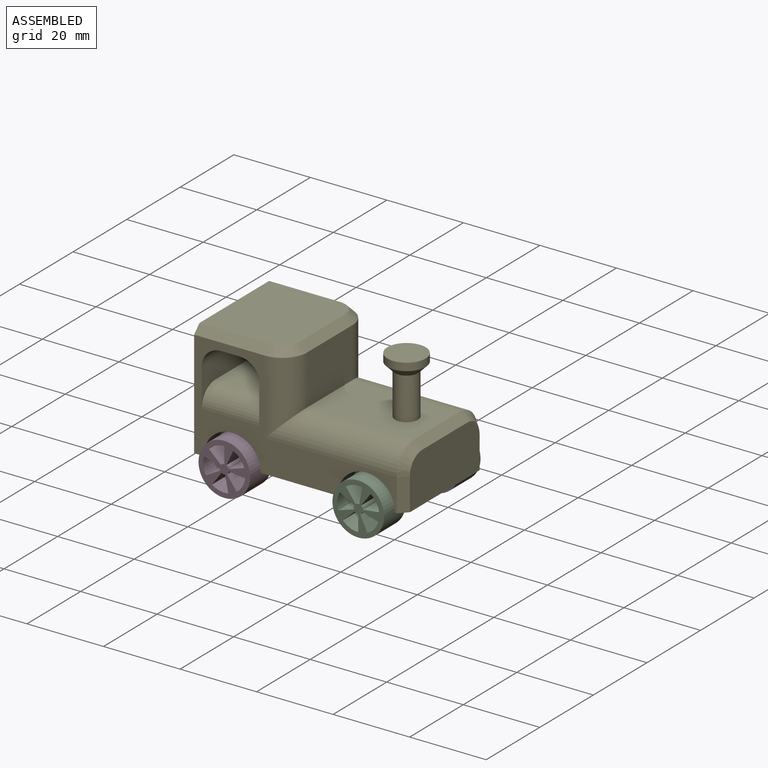
[diagram: assembled view]
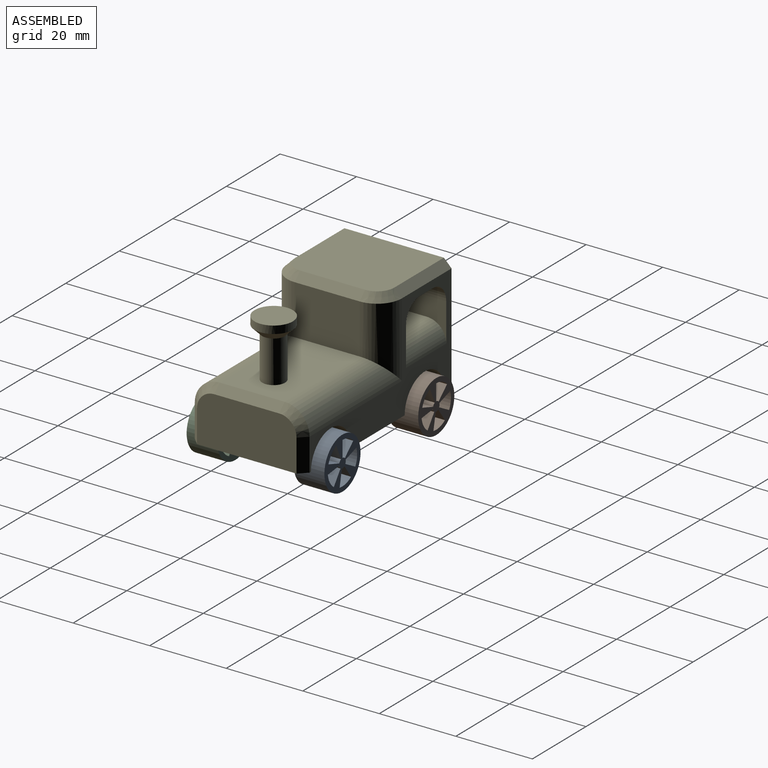
[diagram: assembled view, second angle]
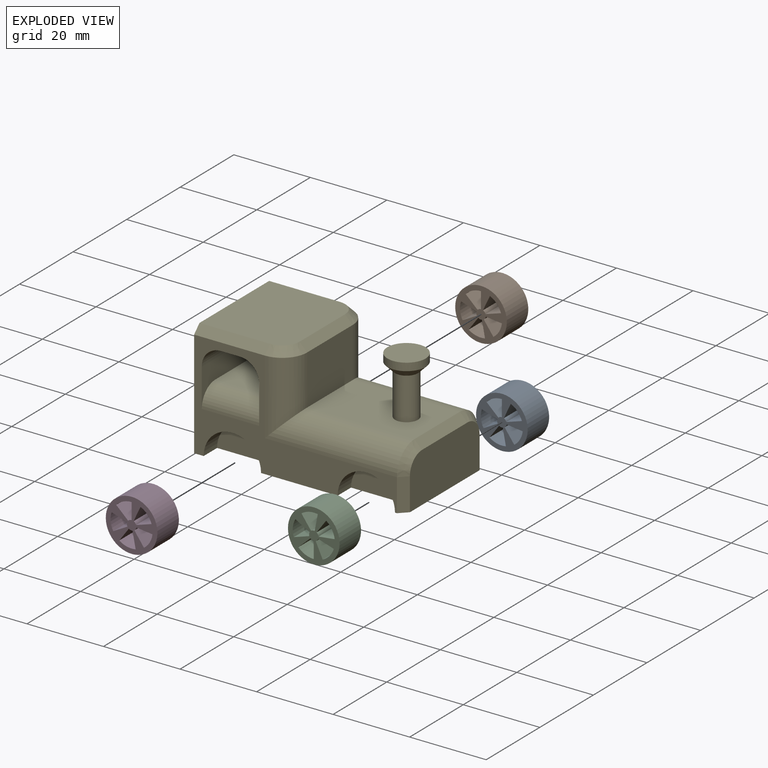
[diagram: exploded view]
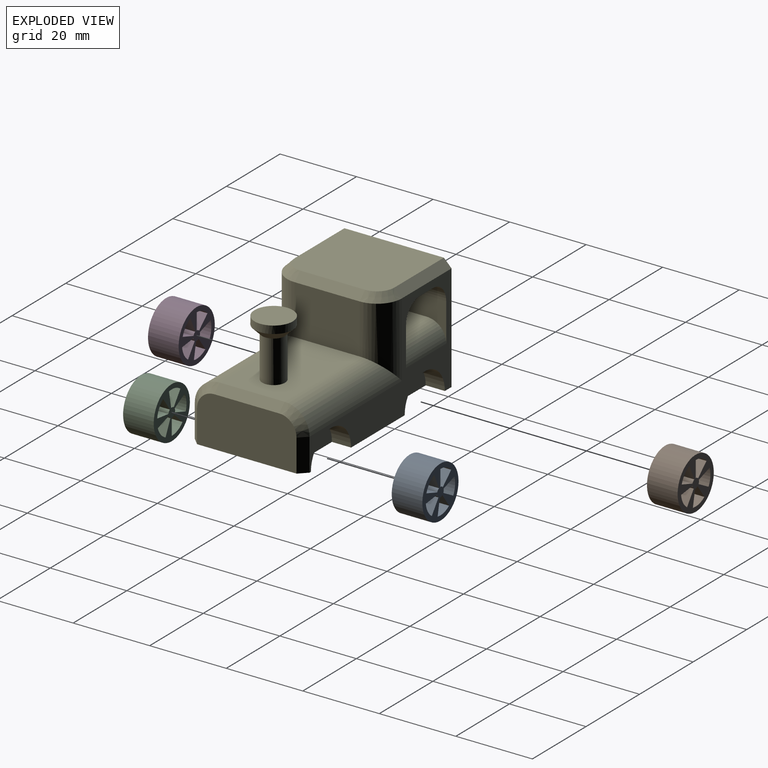
[diagram: exploded view, second angle]
ASSEMBLY  parts=5 mates=4
PART A: 23 faces, bbox 13.5x8x13.5 mm
  f0: plane 13.5x13.5mm, normal (0,1,0), area 84.2mm2, adj f2,f3,f4,f5,f6,f7,f8,f9
  f1: plane 13.5x13.5mm, normal (0,-1,0), area 84.2mm2, adj f2,f3,f4,f5,f6,f7,f8,f9
  f2: cylinder r=6.75mm len=13.5mm, axis (0,-1,0), area 339.3mm2, adj f0,f1
  f3: plane 8x4.06mm, normal (0.31,0,-0.95), area 34.2mm2, adj f0,f1,f4,f6
  f4: cylinder r=5.5mm len=8mm, axis (0,1,0), area 36.1mm2, adj f0,f1,f3,f5
  f5: plane 8x3.74mm, normal (0.48,0,0.87), area 34.2mm2, adj f0,f1,f4,f6
  f6: cylinder r=1.23mm len=8mm, axis (0,1,0), area 8.1mm2, adj f0,f1,f3,f5
  f7: plane 8x4.24mm, normal (0.12,0,-0.99), area 34.2mm2, adj f0,f1,f8,f10
  f8: cylinder r=1.23mm len=8mm, axis (0,1,0), area 8.1mm2, adj f0,f1,f7,f9
  f9: plane 8x3.46mm, normal (-0.81,0,0.59), area 34.2mm2, adj f0,f1,f8,f10
  f10: cylinder r=5.5mm len=8mm, axis (0,1,0), area 36.1mm2, adj f0,f1,f7,f9
  f11: cylinder r=1.23mm len=8mm, axis (0,1,0), area 8.1mm2, adj f0,f1,f12,f14
  f12: plane 8x3.46mm, normal (-0.81,0,-0.59), area 34.2mm2, adj f0,f1,f11,f13
  f13: cylinder r=5.5mm len=8mm, axis (0,1,0), area 36.1mm2, adj f0,f1,f12,f14
  f14: plane 8x4.19mm, normal (0.98,0,-0.19), area 34.2mm2, adj f0,f1,f11,f13
  f15: cylinder r=1.23mm len=8mm, axis (0,1,0), area 8.1mm2, adj f0,f1,f16,f18
  f16: plane 8x4.06mm, normal (0.31,0,0.95), area 34.2mm2, adj f0,f1,f15,f17
  f17: cylinder r=5.5mm len=8mm, axis (0,1,0), area 36.1mm2, adj f0,f1,f16,f18
  f18: plane 8x3.87mm, normal (-0.91,0,-0.42), area 34.2mm2, adj f0,f1,f15,f17
  f19: plane 8x3.12mm, normal (-0.68,0,0.73), area 34.2mm2, adj f0,f1,f20,f22
  f20: cylinder r=1.23mm len=8mm, axis (0,1,0), area 8.1mm2, adj f0,f1,f19,f21
  f21: plane 8x4.27mm, normal (1,0,0), area 34.2mm2, adj f0,f1,f20,f22
  f22: cylinder r=5.5mm len=8mm, axis (0,1,0), area 36.1mm2, adj f0,f1,f19,f21
PART B: same geometry as A
PART C: same geometry as A
PART D: same geometry as A
PART E: 42 faces, bbox 55x30x30 mm
  f0: cylinder r=3mm len=11mm, axis (0,-1,0), area 207.3mm2, adj f7,f41
  f1: plane 55x30mm, normal (0,-1,0), area 1346mm2, adj f2,f3,f4,f6,f9,f10,f11,f12
  f2: plane 53x28mm, normal (0,0,-1), area 420.3mm2, adj f1,f4,f13,f15,f17,f18,f25,f30
  f3: plane 26x13mm, normal (-1,0,0), area 329.3mm2, adj f1,f21,f22,f23,f24,f25
  f4: plane 30x30mm, normal (1,0,0), area 896mm2, adj f1,f2,f5,f6,f26,f30
  f5: plane 26x23mm, normal (0,1,0), area 589.3mm2, adj f4,f26,f27,f28,f29,f30
  f6: plane 53x28mm, normal (0,0,1), area 420.3mm2, adj f1,f4,f9,f11,f19,f20,f21,f26
  f7: plane 28x17mm, normal (0,1,0), area 447.7mm2, adj f0,f8,f18,f19,f23
  f8: plane 17x13mm, normal (-1,0,0), area 221mm2, adj f7,f17,f20,f28
  f9: cylinder r=7.5mm len=15mm, axis (0,0,1), area 117.8mm2, adj f1,f6,f10
  f10: plane 15x7.5mm, normal (0,0,1), area 88.4mm2, adj f1,f9
  f11: cylinder r=7.5mm len=15mm, axis (0,0,1), area 117.8mm2, adj f1,f6,f12
  f12: plane 15x7.5mm, normal (0,0,1), area 88.4mm2, adj f1,f11
  f13: cylinder r=7.5mm len=15mm, axis (0,0,-1), area 117.8mm2, adj f1,f2,f14
  f14: plane 15x7.5mm, normal (0,0,-1), area 88.4mm2, adj f1,f13
  f15: cylinder r=7.5mm len=15mm, axis (0,0,-1), area 117.8mm2, adj f1,f2,f16
  f16: plane 15x7.5mm, normal (0,0,-1), area 88.4mm2, adj f1,f15
  f17: cylinder r=6.5mm len=19.5mm, axis (0,1,0), area 156.8mm2, adj f2,f8,f18,f29
  f18: cylinder r=6.5mm len=34.5mm, axis (1,0,0), area 310mm2, adj f2,f7,f17,f24
  f19: cylinder r=6.5mm len=34.5mm, axis (-1,0,0), area 310mm2, adj f6,f7,f20,f22
  f20: cylinder r=6.5mm len=19.5mm, axis (0,-1,0), area 156.8mm2, adj f6,f8,f19,f27
  f21: plane 8.5x2mm, normal (-0.71,0,0.71), area 24mm2, adj f1,f3,f6,f22
  f22: cone r=4.5mm half-angle=45deg, axis (1,0,0), area 24.4mm2, adj f3,f19,f21,f23
  f23: plane 17x2mm, normal (-0.71,0.71,0), area 48.1mm2, adj f3,f7,f22,f24
  f24: cone r=4.5mm half-angle=45deg, axis (1,0,0), area 24.4mm2, adj f3,f18,f23,f25
  f25: plane 8.5x2mm, normal (-0.71,0,-0.71), area 24mm2, adj f1,f2,f3,f24
  f26: plane 18.5x2mm, normal (0,0.71,0.71), area 52.3mm2, adj f4,f5,f6,f27
  f27: cone r=4.5mm half-angle=45deg, axis (0,-1,0), area 24.4mm2, adj f5,f20,f26,f28
  f28: plane 17x2mm, normal (-0.71,0.71,0), area 48.1mm2, adj f5,f8,f27,f29
  f29: cone r=4.5mm half-angle=45deg, axis (0,-1,0), area 24.4mm2, adj f5,f17,f28,f30
  f30: plane 18.5x2mm, normal (0,0.71,-0.71), area 52.3mm2, adj f2,f4,f5,f29
  f31: plane 30x10mm, normal (1,0,0), area 160.7mm2, adj f2,f6,f32,f35,f36,f38
  f32: plane 20x15mm, normal (0,1,0), area 300mm2, adj f31,f33,f35,f36
  f33: plane 30x10mm, normal (-1,0,0), area 160.7mm2, adj f2,f6,f32,f35,f36,f37
  f34: plane 30x5mm, normal (0,-1,0), area 150mm2, adj f2,f6,f37,f38
  f35: cylinder r=5mm len=15mm, axis (-1,0,0), area 117.8mm2, adj f6,f31,f32,f33
  f36: cylinder r=5mm len=15mm, axis (1,0,0), area 117.8mm2, adj f2,f31,f32,f33
  f37: cylinder r=5mm len=30mm, axis (0,0,-1), area 235.6mm2, adj f2,f6,f33,f34
  f38: cylinder r=5mm len=30mm, axis (0,0,1), area 235.6mm2, adj f2,f6,f31,f34
  f39: cylinder r=5mm len=10mm, axis (0,1,0), area 62.8mm2, adj f40,f41
  f40: plane 10x10mm, normal (0,1,0), area 78.5mm2, adj f39
  f41: cone r=5mm half-angle=45deg, axis (0,1,0), area 71.1mm2, adj f0,f39
PLACE A rot(axis=(0,0,-1),180deg) t=(-65.57,10.47,-3.61)mm
PLACE B rot(axis=(0,0,-1),180deg) t=(-100.57,10.47,-3.61)mm
PLACE C rot(axis=(0,-1,0),180deg) t=(-65.57,-25.53,-3.61)mm
PLACE D rot(axis=(0,0,-1),180deg) t=(-100.57,-17.53,-3.61)mm
PLACE E rot(axis=(0,-0.71,-0.71),180deg) t=(-83.07,-22.53,11.39)mm fixed
MATE fastened E.f11 <-> C.f2  axis (0,-1,0) through (-65.57,-17.53,-3.61)mm
MATE fastened D.f2 <-> E.f9  axis (0,1,0) through (-100.57,-17.53,-3.61)mm
MATE fastened B.f2 <-> E.f9  axis (0,-1,0) through (-100.57,2.47,-3.61)mm
MATE fastened A.f2 <-> E.f11  axis (0,-1,0) through (-65.57,2.47,-3.61)mm
